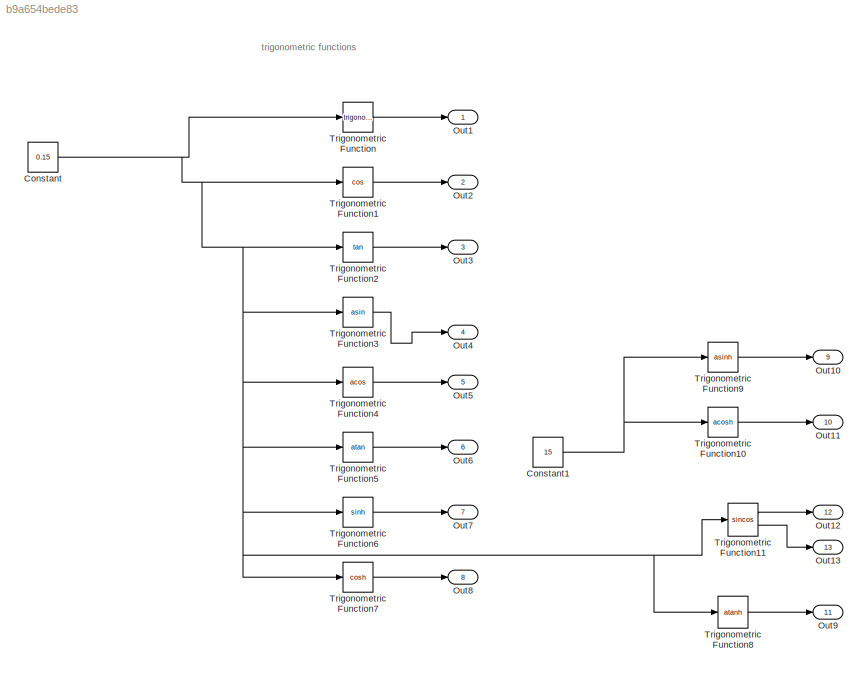
MODEL slx_b9a654bede83
KIND model
CONFIG AbsTol = auto
CONFIG EnableMultiTasking = on
CONFIG FixedStep = 0.1
CONFIG MaxStep = auto
CONFIG MinStep = auto
CONFIG RelTol = 1e-3
CONFIG SampleTimeConstraint = Unconstrained
CONFIG Solver = FixedStepAuto
CONFIG SolverName = FixedStepAuto
CONFIG StartTime = 0.0
CONFIG StopTime = 10.0
WORKSPACE source: MAT-file member
WORKSPACE lustrec_slx_eps = 0.001
BLOCK [Constant] Constant
  Value = 0.15
BLOCK [Constant] Constant1
  Value = 15
BLOCK [Outport] Out1
  IconDisplay = Port number
BLOCK [Outport] Out10
  IconDisplay = Port number
  Port = 9
BLOCK [Outport] Out11
  IconDisplay = Port number
  Port = 10
BLOCK [Outport] Out12
  IconDisplay = Port number
  Port = 12
BLOCK [Outport] Out13
  IconDisplay = Port number
  Port = 13
BLOCK [Outport] Out2
  IconDisplay = Port number
  Port = 2
BLOCK [Outport] Out3
  IconDisplay = Port number
  Port = 3
BLOCK [Outport] Out4
  IconDisplay = Port number
  Port = 4
BLOCK [Outport] Out5
  IconDisplay = Port number
  Port = 5
BLOCK [Outport] Out6
  IconDisplay = Port number
  Port = 6
BLOCK [Outport] Out7
  IconDisplay = Port number
  Port = 7
BLOCK [Outport] Out8
  IconDisplay = Port number
  Port = 8
BLOCK [Outport] Out9
  IconDisplay = Port number
  Port = 11
BLOCK [Trigonometry] Trigonometric Function
  ApproximationMethod = CORDIC
  Ports = [1, 1]
BLOCK [Trigonometry] Trigonometric Function1
  ApproximationMethod = CORDIC
  Operator = cos
  Ports = [1, 1]
BLOCK [Trigonometry] Trigonometric Function10
  ApproximationMethod = CORDIC
  Operator = acosh
  Ports = [1, 1]
BLOCK [Trigonometry] Trigonometric Function11
  ApproximationMethod = CORDIC
  Operator = sincos
  Ports = [1, 2]
BLOCK [Trigonometry] Trigonometric Function2
  ApproximationMethod = CORDIC
  Operator = tan
  Ports = [1, 1]
BLOCK [Trigonometry] Trigonometric Function3
  ApproximationMethod = CORDIC
  Operator = asin
  Ports = [1, 1]
BLOCK [Trigonometry] Trigonometric Function4
  ApproximationMethod = CORDIC
  Operator = acos
  Ports = [1, 1]
BLOCK [Trigonometry] Trigonometric Function5
  ApproximationMethod = CORDIC
  Operator = atan
  Ports = [1, 1]
BLOCK [Trigonometry] Trigonometric Function6
  ApproximationMethod = CORDIC
  Operator = sinh
  Ports = [1, 1]
BLOCK [Trigonometry] Trigonometric Function7
  ApproximationMethod = CORDIC
  Operator = cosh
  Ports = [1, 1]
BLOCK [Trigonometry] Trigonometric Function8
  ApproximationMethod = CORDIC
  Operator = atanh
  Ports = [1, 1]
BLOCK [Trigonometry] Trigonometric Function9
  ApproximationMethod = CORDIC
  Operator = asinh
  Ports = [1, 1]
ANNOTATION (root): trigonometric functions
NET Constant1:1 -> Trigonometric Function10:1, Trigonometric Function9:1
NET Constant:1 -> Trigonometric Function11:1, Trigonometric Function1:1, Trigonometric Function2:1, Trigonometric Function3:1, Trigonometric Function4:1, Trigonometric Function5:1, Trigonometric Function6:1, Trigonometric Function7:1, Trigonometric Function8:1, Trigonometric Function:1
LINE Trigonometric Function10:1 -> Out11:1
LINE Trigonometric Function11:1 -> Out12:1
LINE Trigonometric Function11:2 -> Out13:1
LINE Trigonometric Function1:1 -> Out2:1
LINE Trigonometric Function2:1 -> Out3:1
LINE Trigonometric Function3:1 -> Out4:1
LINE Trigonometric Function4:1 -> Out5:1
LINE Trigonometric Function5:1 -> Out6:1
LINE Trigonometric Function6:1 -> Out7:1
LINE Trigonometric Function7:1 -> Out8:1
LINE Trigonometric Function8:1 -> Out9:1
LINE Trigonometric Function9:1 -> Out10:1
LINE Trigonometric Function:1 -> Out1:1
note: NET lines group one-source signal fan-out (src -> all destinations, sorted); 1:1 wires keep LINE
